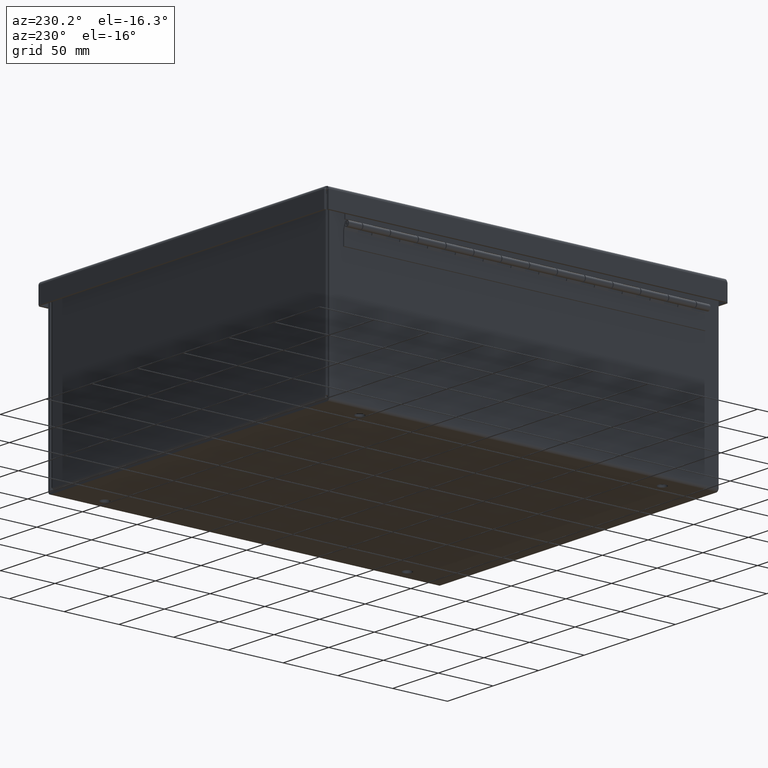
[diagram: clean part render]
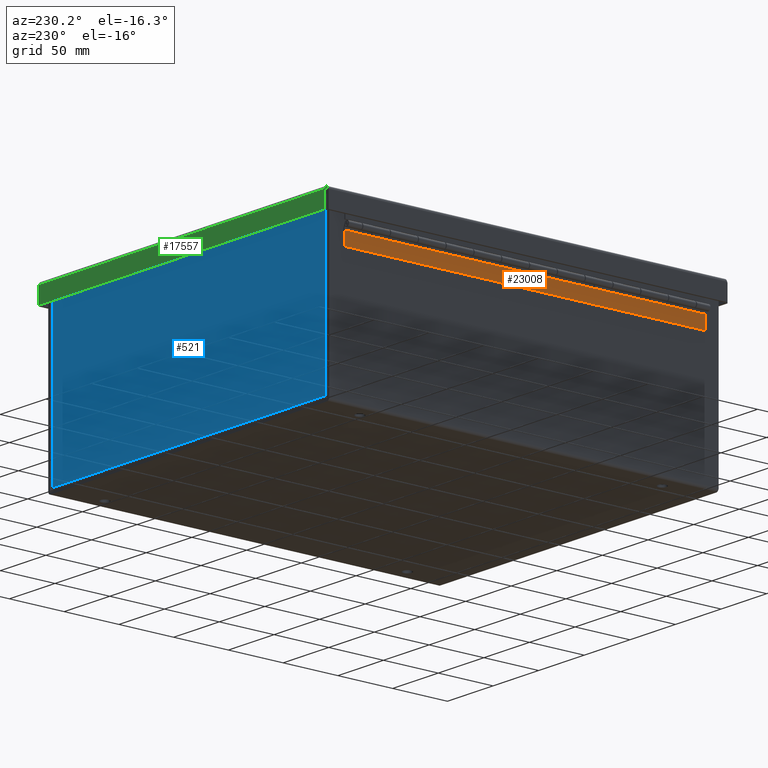
[diagram: same view with three faces highlighted in distinct colors, each labeled with its STEP entity id]
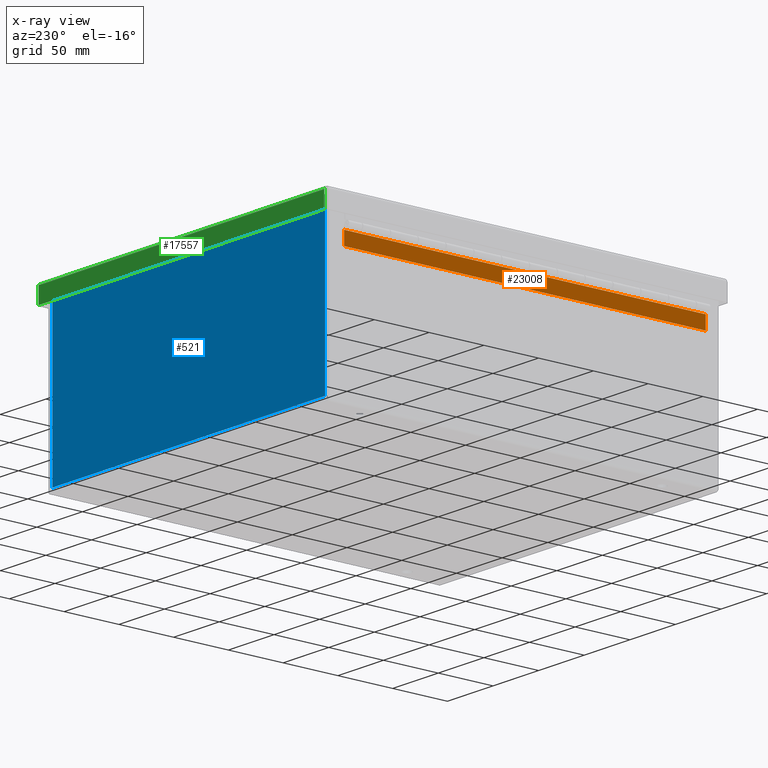
[diagram: x-ray of the same camera — body ghosted, the three highlighted faces saturated]
A machine part, auxiliary view with three faces highlighted in distinct colors.
The next image is the same camera in x-ray (body ghosted, the three faces saturated) — at least one of them is partly hidden behind the body in this view.
Their STEP definitions:

[orange] entity #23008 — the highlighted planar face has unit normal (-1, -0, -0).
#22186=CARTESIAN_POINT('',(0.0418,0.47,0.0));
#22187=VERTEX_POINT('',#22186);
#22194=CARTESIAN_POINT('',(0.0418,5.119024E-018,0.0));
#22195=VERTEX_POINT('',#22194);
#22196=CARTESIAN_POINT('',(0.0418,5.119024E-018,0.0));
#22197=DIRECTION('',(0.0,1.0,0.0));
#22198=VECTOR('',#22197,0.47);
#22199=LINE('',#22196,#22198);
#22200=EDGE_CURVE('',#22195,#22187,#22199,.T.);
#22687=CARTESIAN_POINT('',(0.0418,0.47,13.000000000000002));
#22688=VERTEX_POINT('',#22687);
#22695=CARTESIAN_POINT('',(0.0418,0.47,0.0));
#22696=DIRECTION('',(0.0,0.0,1.0));
#22697=VECTOR('',#22696,13.000000000000002);
#22698=LINE('',#22695,#22697);
#22699=EDGE_CURVE('',#22187,#22688,#22698,.T.);
#22985=CARTESIAN_POINT('',(0.0418,0.47,0.0));
#22986=DIRECTION('',(1.0,0.0,0.0));
#22987=DIRECTION('',(0.0,0.0,-1.0));
#22988=AXIS2_PLACEMENT_3D('',#22985,#22986,#22987);
#22989=PLANE('',#22988);
#22990=CARTESIAN_POINT('',(0.0418,5.119024E-018,13.000000000000002));
#22991=VERTEX_POINT('',#22990);
#22992=CARTESIAN_POINT('',(0.0418,0.47,13.000000000000002));
#22993=DIRECTION('',(0.0,-1.0,0.0));
#22994=VECTOR('',#22993,0.47);
#22995=LINE('',#22992,#22994);
#22996=EDGE_CURVE('',#22688,#22991,#22995,.T.);
#22997=ORIENTED_EDGE('',*,*,#22996,.T.);
#22998=CARTESIAN_POINT('',(0.0418,5.119024E-018,0.0));
#22999=DIRECTION('',(0.0,0.0,1.0));
#23000=VECTOR('',#22999,13.000000000000002);
#23001=LINE('',#22998,#23000);
#23002=EDGE_CURVE('',#22195,#22991,#23001,.T.);
#23003=ORIENTED_EDGE('',*,*,#23002,.F.);
#23004=ORIENTED_EDGE('',*,*,#22200,.T.);
#23005=ORIENTED_EDGE('',*,*,#22699,.T.);
#23006=EDGE_LOOP('',(#22997,#23003,#23004,#23005));
#23007=FACE_OUTER_BOUND('',#23006,.T.);
#23008=ADVANCED_FACE('',(#23007),#22989,.T.);

[blue] entity #521 — the highlighted planar face has unit normal (-0, 1, 0).
#134=CARTESIAN_POINT('',(-5.3425,2.925999999999999,0.074));
#135=VERTEX_POINT('',#134);
#143=CARTESIAN_POINT('',(5.342499999999998,2.925999999999999,0.074));
#144=VERTEX_POINT('',#143);
#145=CARTESIAN_POINT('',(5.342499999999998,2.925999999999999,0.074));
#146=DIRECTION('',(-1.0,0.0,0.0));
#147=VECTOR('',#146,10.684999999999997);
#148=LINE('',#145,#147);
#149=EDGE_CURVE('',#144,#135,#148,.T.);
#361=CARTESIAN_POINT('',(5.342499999999998,2.925799999999999,0.074));
#362=VERTEX_POINT('',#361);
#363=CARTESIAN_POINT('',(5.342499999999998,2.925799999999999,0.074));
#364=DIRECTION('',(0.0,1.0,0.0));
#365=VECTOR('',#364,0.0002);
#366=LINE('',#363,#365);
#367=EDGE_CURVE('',#362,#144,#366,.T.);
#391=CARTESIAN_POINT('',(5.342699999999998,2.957249999999999,0.074));
#392=VERTEX_POINT('',#391);
#393=CARTESIAN_POINT('',(5.342699999999998,2.925799999999999,0.074));
#394=VERTEX_POINT('',#393);
#395=CARTESIAN_POINT('',(5.342699999999998,2.957249999999999,0.074));
#396=DIRECTION('',(0.0,-1.0,0.0));
#397=VECTOR('',#396,0.03145);
#398=LINE('',#395,#397);
#399=EDGE_CURVE('',#392,#394,#398,.T.);
#431=CARTESIAN_POINT('',(5.342699999999997,2.925799999999999,0.074));
#432=DIRECTION('',(-1.0,0.0,0.0));
#433=VECTOR('',#432,0.0002);
#434=LINE('',#431,#433);
#435=EDGE_CURVE('',#394,#362,#434,.T.);
#448=CARTESIAN_POINT('',(-1.049030E-015,-1.748383E-016,0.074));
#449=DIRECTION('',(0.0,0.0,1.0));
#450=DIRECTION('',(1.0,0.0,0.0));
#451=AXIS2_PLACEMENT_3D('',#448,#449,#450);
#452=PLANE('',#451);
#453=ORIENTED_EDGE('',*,*,#399,.T.);
#454=ORIENTED_EDGE('',*,*,#435,.T.);
#455=ORIENTED_EDGE('',*,*,#367,.T.);
#456=ORIENTED_EDGE('',*,*,#149,.T.);
#457=CARTESIAN_POINT('',(-5.3425,2.925799999999999,0.074));
#458=VERTEX_POINT('',#457);
#459=CARTESIAN_POINT('',(-5.3425,2.925999999999999,0.074));
#460=DIRECTION('',(0.0,-1.0,0.0));
#461=VECTOR('',#460,0.0002);
#462=LINE('',#459,#461);
#463=EDGE_CURVE('',#135,#458,#462,.T.);
#464=ORIENTED_EDGE('',*,*,#463,.T.);
#465=CARTESIAN_POINT('',(-5.342700000000001,2.925799999999999,0.074));
#466=VERTEX_POINT('',#465);
#467=CARTESIAN_POINT('',(-5.3425,2.925799999999999,0.074));
#468=DIRECTION('',(-1.0,0.0,0.0));
#469=VECTOR('',#468,0.0002);
#470=LINE('',#467,#469);
#471=EDGE_CURVE('',#458,#466,#470,.T.);
#472=ORIENTED_EDGE('',*,*,#471,.T.);
#473=CARTESIAN_POINT('',(-5.342700000000001,2.957249999999999,0.074));
#474=VERTEX_POINT('',#473);
#475=CARTESIAN_POINT('',(-5.342700000000001,2.925799999999999,0.074));
#476=DIRECTION('',(0.0,1.0,0.0));
#477=VECTOR('',#476,0.03145);
#478=LINE('',#475,#477);
#479=EDGE_CURVE('',#466,#474,#478,.T.);
#480=ORIENTED_EDGE('',*,*,#479,.T.);
#481=CARTESIAN_POINT('',(-5.88325,2.957249999999999,0.074));
#482=VERTEX_POINT('',#481);
#483=CARTESIAN_POINT('',(-5.88325,2.957249999999999,0.074));
#484=DIRECTION('',(1.0,0.0,0.0));
#485=VECTOR('',#484,0.540550000000001);
#486=LINE('',#483,#485);
#487=EDGE_CURVE('',#482,#474,#486,.T.);
#488=ORIENTED_EDGE('',*,*,#487,.F.);
#489=CARTESIAN_POINT('',(-5.883249999999999,-2.851999999999999,0.074));
#490=VERTEX_POINT('',#489);
#491=CARTESIAN_POINT('',(-5.88325,2.957249999999999,0.074));
#492=DIRECTION('',(0.0,-1.0,0.0));
#493=VECTOR('',#492,5.809249999999999);
#494=LINE('',#491,#493);
#495=EDGE_CURVE('',#482,#490,#494,.T.);
#496=ORIENTED_EDGE('',*,*,#495,.T.);
#497=CARTESIAN_POINT('',(5.883249999999998,-2.851999999999998,0.074));
#498=VERTEX_POINT('',#497);
#499=CARTESIAN_POINT('',(-5.88325,-2.852,0.074));
#500=DIRECTION('',(1.0,0.0,0.0));
#501=VECTOR('',#500,11.766499999999997);
#502=LINE('',#499,#501);
#503=EDGE_CURVE('',#490,#498,#502,.T.);
#504=ORIENTED_EDGE('',*,*,#503,.T.);
#505=CARTESIAN_POINT('',(5.883249999999998,2.957249999999999,0.074));
#506=VERTEX_POINT('',#505);
#507=CARTESIAN_POINT('',(5.883249999999998,-2.851999999999998,0.074));
#508=DIRECTION('',(0.0,1.0,0.0));
#509=VECTOR('',#508,5.809249999999997);
#510=LINE('',#507,#509);
#511=EDGE_CURVE('',#498,#506,#510,.T.);
#512=ORIENTED_EDGE('',*,*,#511,.T.);
#513=CARTESIAN_POINT('',(5.342699999999998,2.957249999999999,0.074));
#514=DIRECTION('',(1.0,0.0,0.0));
#515=VECTOR('',#514,0.54055);
#516=LINE('',#513,#515);
#517=EDGE_CURVE('',#392,#506,#516,.T.);
#518=ORIENTED_EDGE('',*,*,#517,.F.);
#519=EDGE_LOOP('',(#453,#454,#455,#456,#464,#472,#480,#488,#496,#504,#512,#518));
#520=FACE_OUTER_BOUND('',#519,.T.);
#521=ADVANCED_FACE('',(#520),#452,.T.);

[green] entity #17557 — the highlighted planar face has unit normal (0, 1, 0).
#17518=CARTESIAN_POINT('',(5.728305E-016,7.250000000000002,-0.272744098904286));
#17519=DIRECTION('',(0.0,1.0,0.0));
#17520=DIRECTION('',(1.0,0.0,0.0));
#17521=AXIS2_PLACEMENT_3D('',#17518,#17519,#17520);
#17522=PLANE('',#17521);
#17523=CARTESIAN_POINT('',(-6.164951456543959,7.249999999999997,-0.031250000000001));
#17524=VERTEX_POINT('',#17523);
#17525=CARTESIAN_POINT('',(6.164951456543962,7.250000000000004,-0.031250000000002));
#17526=VERTEX_POINT('',#17525);
#17527=CARTESIAN_POINT('',(-6.164951456543959,7.25,-0.03125));
#17528=DIRECTION('',(1.0,0.0,0.0));
#17529=VECTOR('',#17528,12.329902913087921);
#17530=LINE('',#17527,#17529);
#17531=EDGE_CURVE('',#17524,#17526,#17530,.T.);
#17532=ORIENTED_EDGE('',*,*,#17531,.T.);
#17533=CARTESIAN_POINT('',(6.164951456543962,7.250000000000007,-0.613500000000004));
#17534=VERTEX_POINT('',#17533);
#17535=CARTESIAN_POINT('',(6.164951456543962,7.250000000000003,-0.031250000000004));
#17536=DIRECTION('',(0.0,0.0,-1.0));
#17537=VECTOR('',#17536,0.58225);
#17538=LINE('',#17535,#17537);
#17539=EDGE_CURVE('',#17526,#17534,#17538,.T.);
#17540=ORIENTED_EDGE('',*,*,#17539,.T.);
#17541=CARTESIAN_POINT('',(-6.16495145654396,7.250000000000002,-0.613500000000001));
#17542=VERTEX_POINT('',#17541);
#17543=CARTESIAN_POINT('',(6.164951456543962,7.250000000000007,-0.613500000000004));
#17544=DIRECTION('',(-1.0,0.0,0.0));
#17545=VECTOR('',#17544,12.329902913087922);
#17546=LINE('',#17543,#17545);
#17547=EDGE_CURVE('',#17534,#17542,#17546,.T.);
#17548=ORIENTED_EDGE('',*,*,#17547,.T.);
#17549=CARTESIAN_POINT('',(-6.16495145654396,7.249999999999997,-0.031250000000001));
#17550=DIRECTION('',(0.0,0.0,-1.0));
#17551=VECTOR('',#17550,0.58225);
#17552=LINE('',#17549,#17551);
#17553=EDGE_CURVE('',#17524,#17542,#17552,.T.);
#17554=ORIENTED_EDGE('',*,*,#17553,.F.);
#17555=EDGE_LOOP('',(#17532,#17540,#17548,#17554));
#17556=FACE_OUTER_BOUND('',#17555,.T.);
#17557=ADVANCED_FACE('',(#17556),#17522,.T.);